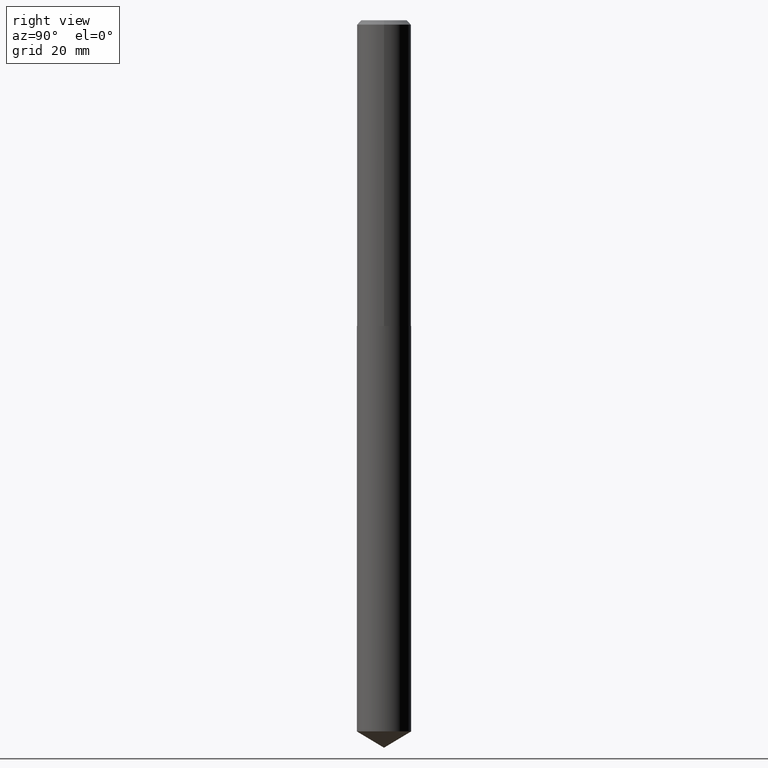
[diagram: clean part render]
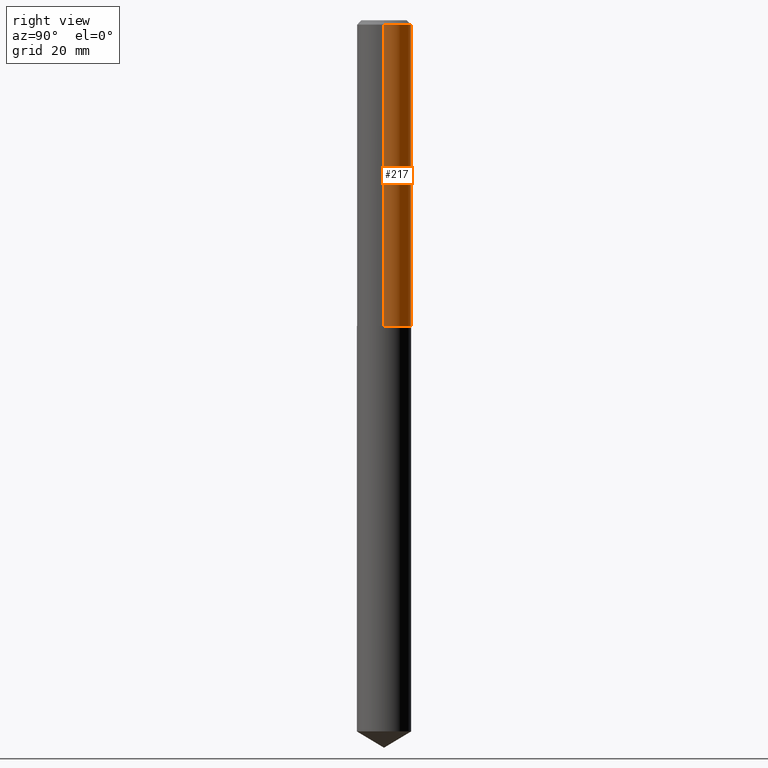
[diagram: same view with one face highlighted and labeled with its STEP entity id]
A machine part, right view. The second image highlights one B-rep face of the part: STEP entity #217.
In plain terms, the highlighted cylindrical surface (edge-blend (fillet) strip) has radius 4.9505 mm, axis along (-0, 0, 1).
Its self-contained STEP definition (entity closure, byte-faithful):
#9 = EDGE_CURVE ( 'NONE', #269, #185, #24, .T. ) ;
#10 = CARTESIAN_POINT ( 'NONE',  ( 0.000000000000000000, 0.000000000000000000, 0.000000000000000000 ) ) ;
#22 = DIRECTION ( 'NONE',  ( 1.000000000000000000, -6.982962677686263555E-15, 0.000000000000000000 ) ) ;
#24 = CIRCLE ( 'NONE', #244, 0.1949000000000002952 ) ;
#29 = VERTEX_POINT ( 'NONE', #211 ) ;
#42 = DIRECTION ( 'NONE',  ( 1.000000000000000000, -6.982962677686266711E-15, 4.876176775795935232E-29 ) ) ;
#50 = DIRECTION ( 'NONE',  ( -2.445468806185136597E-29, 3.491481338843145583E-15, 1.000000000000000000 ) ) ;
#52 = ORIENTED_EDGE ( 'NONE', *, *, #139, .F. ) ;
#79 = LINE ( 'NONE', #342, #350 ) ;
#128 = DIRECTION ( 'NONE',  ( 1.000000000000000000, -6.982962677686266711E-15, 0.000000000000000000 ) ) ;
#134 = CARTESIAN_POINT ( 'NONE',  ( -0.1949000000000002952, -6.297458597860138900E-15, -2.200300000000000811 ) ) ;
#135 = AXIS2_PLACEMENT_3D ( 'NONE', #10, #286, #42 ) ;
#137 = CYLINDRICAL_SURFACE ( 'NONE', #135, 0.1949000000000001565 ) ;
#139 = EDGE_CURVE ( 'NONE', #29, #387, #141, .T. ) ;
#141 = CIRCLE ( 'NONE', #364, 0.1948999999999999899 ) ;
#185 = VERTEX_POINT ( 'NONE', #134 ) ;
#189 = ORIENTED_EDGE ( 'NONE', *, *, #377, .T. ) ;
#198 = EDGE_LOOP ( 'NONE', ( #366, #189, #52, #297 ) ) ;
#202 = LINE ( 'NONE', #372, #274 ) ;
#211 = CARTESIAN_POINT ( 'NONE',  ( 0.1948999999999999899, -1.470088217719902192E-15, -0.03125000000000022898 ) ) ;
#217 = ADVANCED_FACE ( 'NONE', ( #257 ), #137, .T. ) ;
#222 = CARTESIAN_POINT ( 'NONE',  ( 7.642090019328607917E-31, -1.091087918388491006E-16, -0.03125000000000022898 ) ) ;
#244 = AXIS2_PLACEMENT_3D ( 'NONE', #324, #50, #22 ) ;
#251 = EDGE_CURVE ( 'NONE', #269, #29, #202, .T. ) ;
#257 = FACE_OUTER_BOUND ( 'NONE', #198, .T. ) ;
#269 = VERTEX_POINT ( 'NONE', #371 ) ;
#274 = VECTOR ( 'NONE', #288, 39.37007874015748143 ) ;
#286 = DIRECTION ( 'NONE',  ( -2.445468806185136597E-29, 3.491481338843145583E-15, 1.000000000000000000 ) ) ;
#288 = DIRECTION ( 'NONE',  ( -2.445468806185136877E-29, 3.491481338843145188E-15, 1.000000000000000000 ) ) ;
#291 = CARTESIAN_POINT ( 'NONE',  ( -0.1948999999999999899, -2.510859798851274926E-15, -0.03125000000000022898 ) ) ;
#297 = ORIENTED_EDGE ( 'NONE', *, *, #251, .F. ) ;
#306 = DIRECTION ( 'NONE',  ( -2.445468806185136597E-29, 3.491481338843145583E-15, 1.000000000000000000 ) ) ;
#319 = DIRECTION ( 'NONE',  ( -2.445468806185136877E-29, 3.491481338843145188E-15, 1.000000000000000000 ) ) ;
#324 = CARTESIAN_POINT ( 'NONE',  ( 5.380765014249158212E-29, -7.682306389856577049E-15, -2.200300000000000811 ) ) ;
#342 = CARTESIAN_POINT ( 'NONE',  ( -0.1949000000000001565, 1.384847791996436374E-15, -9.587004490906818331E-30 ) ) ;
#350 = VECTOR ( 'NONE', #319, 39.37007874015748143 ) ;
#364 = AXIS2_PLACEMENT_3D ( 'NONE', #222, #306, #128 ) ;
#366 = ORIENTED_EDGE ( 'NONE', *, *, #9, .T. ) ;
#371 = CARTESIAN_POINT ( 'NONE',  ( 0.1949000000000002952, -9.043285815737631719E-15, -2.200300000000000811 ) ) ;
#372 = CARTESIAN_POINT ( 'NONE',  ( 0.1949000000000001565, -1.360979425881054472E-15, 9.503668536026285822E-30 ) ) ;
#377 = EDGE_CURVE ( 'NONE', #185, #387, #79, .T. ) ;
#387 = VERTEX_POINT ( 'NONE', #291 ) ;